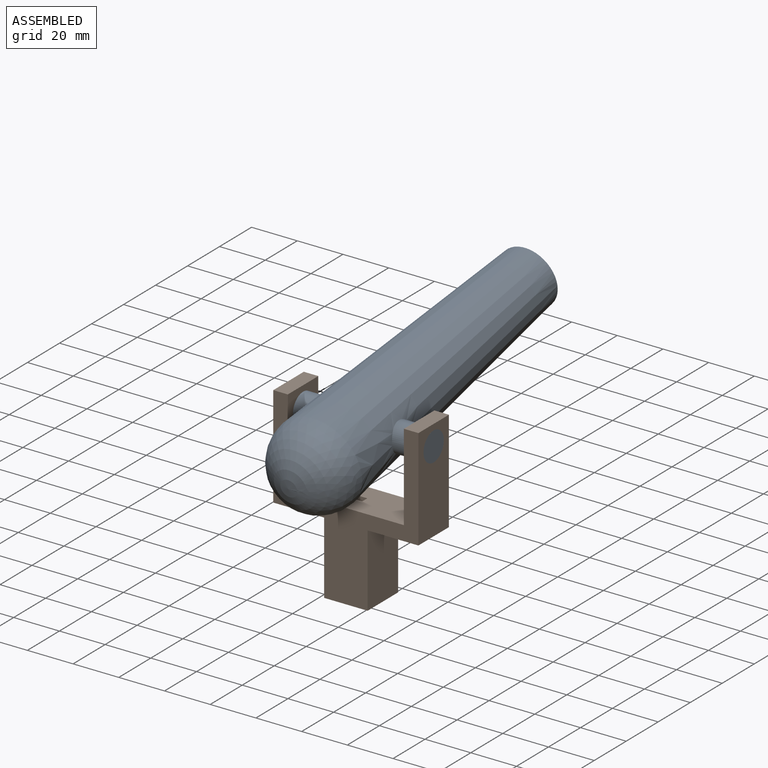
[diagram: assembled view]
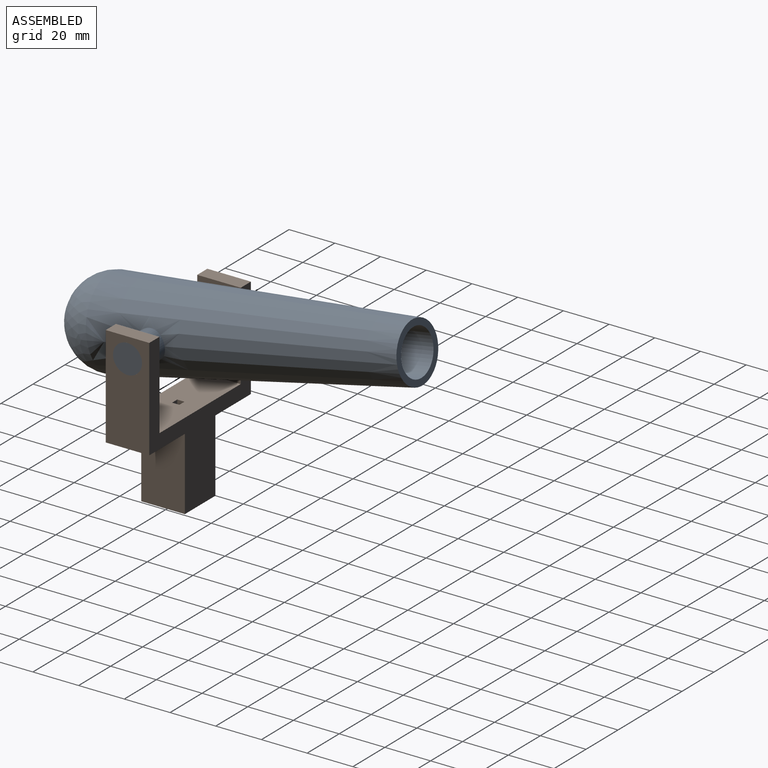
[diagram: assembled view, second angle]
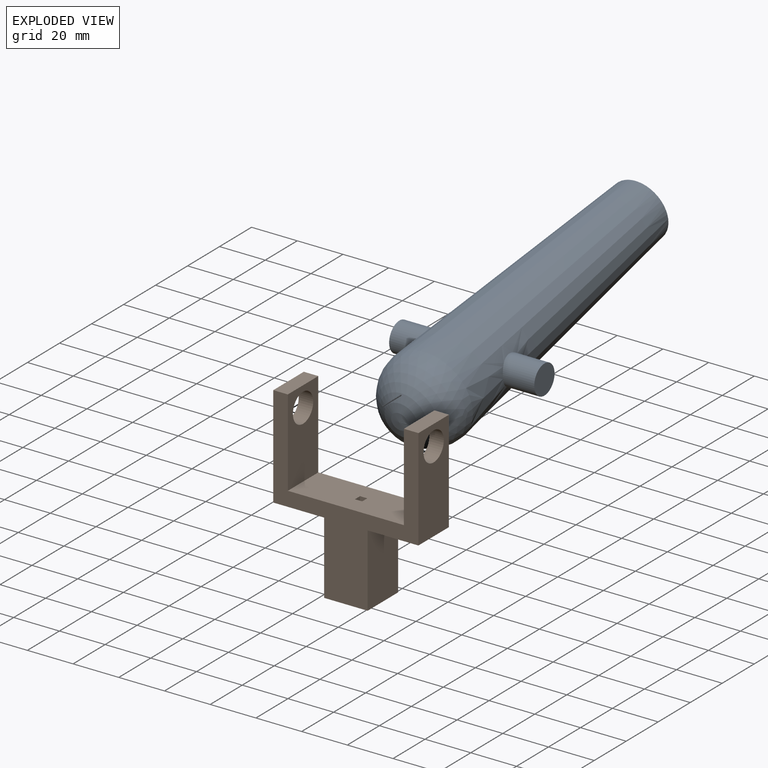
[diagram: exploded view]
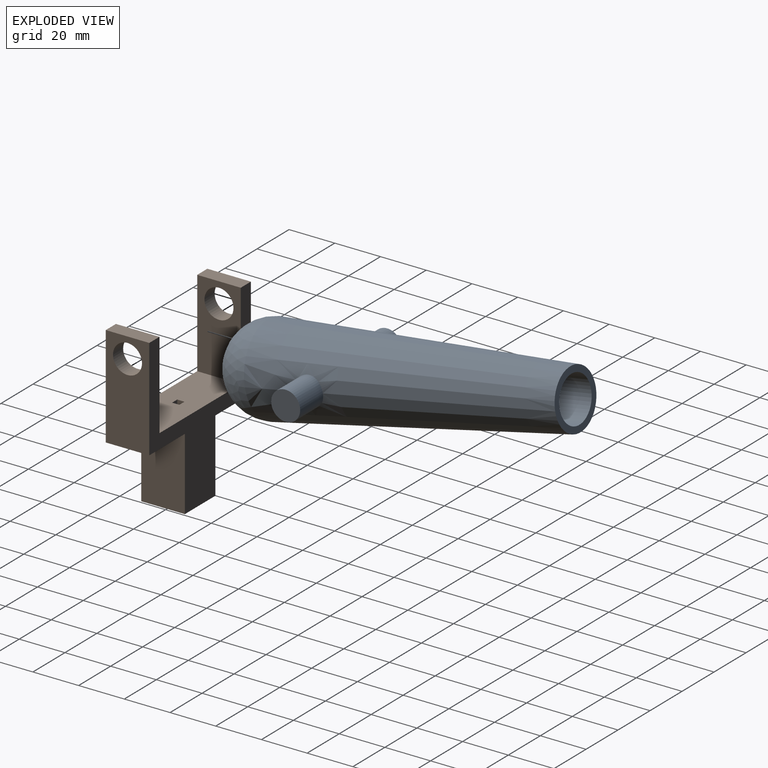
[diagram: exploded view, second angle]
ASSEMBLY  parts=2 mates=2
PART A: 9 faces, bbox 152.4x63.5x38.1 mm
  f0: sphere r=19.05mm, area 2280.2mm2, adj f1
  f1: cone r=19.05mm half-angle=2.7deg, axis (1,0,0), area 13058.3mm2, adj f0,f2,f6,f7
  f2: plane 25.4x25.4mm, normal (-1,0,0), area 202.8mm2, adj f1,f3
  f3: cylinder r=9.84mm len=91.44mm, axis (-1,0,0), area 5650.7mm2, adj f2,f4
  f4: plane 19.67x19.67mm, normal (-1,0,0), area 303.9mm2, adj f3
  f5: plane 12.7x12.7mm, normal (0,1,0), area 126.7mm2, adj f6
  f6: cylinder r=6.35mm len=15.19mm, axis (0,-1,0), area 581.5mm2, adj f1,f5
  f7: cylinder r=6.35mm len=15.19mm, axis (0,-1,0), area 581.5mm2, adj f1,f8
  f8: plane 12.7x12.7mm, normal (0,-1,0), area 126.7mm2, adj f7
PART B: 20 faces, bbox 63.5x19.1x76.2 mm
  f0: plane 31.75x19.05mm, normal (-1,0,0), area 604.8mm2, adj f4,f6,f9,f12
  f1: plane 38.1x3.18mm, normal (-1,0,0), area 121mm2, adj f2,f7,f8,f9
  f2: plane 38.1x3.18mm, normal (0,1,0), area 121mm2, adj f1,f3,f8,f9
  f3: plane 38.1x3.18mm, normal (1,0,0), area 121mm2, adj f2,f7,f8,f9
  f4: plane 76.2x63.5mm, normal (0,-1,0), area 1491.9mm2, adj f0,f5,f8,f9,f10,f11,f12,f13
  f5: plane 31.75x19.05mm, normal (1,0,0), area 604.8mm2, adj f4,f6,f9,f10
  f6: plane 76.2x63.5mm, normal (0,1,0), area 1491.9mm2, adj f0,f5,f8,f9,f10,f11,f12,f13
  f7: plane 38.1x3.18mm, normal (0,-1,0), area 121mm2, adj f1,f3,f8,f9
  f8: plane 50.8x19.05mm, normal (0,0,1), area 957.7mm2, adj f1,f2,f3,f4,f6,f7,f14,f16
  f9: plane 19.05x19.05mm, normal (0,0,-1), area 352.8mm2, adj f0,f1,f2,f3,f4,f5,f6,f7
  f10: plane 22.23x19.05mm, normal (0,0,-1), area 423.4mm2, adj f4,f5,f6,f11
  f11: plane 44.45x19.05mm, normal (1,0,0), area 720.1mm2, adj f4,f6,f10,f17,f19
  f12: plane 22.23x19.05mm, normal (0,0,-1), area 423.4mm2, adj f0,f4,f6,f13
  f13: plane 44.45x19.05mm, normal (-1,0,0), area 720.1mm2, adj f4,f6,f12,f15,f18
  f14: plane 38.1x19.05mm, normal (1,0,0), area 599.1mm2, adj f4,f6,f8,f15,f18
  f15: plane 19.05x6.35mm, normal (0,0,1), area 121mm2, adj f4,f6,f13,f14
  f16: plane 38.1x19.05mm, normal (-1,0,0), area 599.1mm2, adj f4,f6,f8,f17,f19
  f17: plane 19.05x6.35mm, normal (0,0,1), area 121mm2, adj f4,f6,f11,f16
  f18: cylinder r=6.35mm len=12.7mm, axis (1,0,0), area 253.4mm2, adj f13,f14
  f19: cylinder r=6.35mm len=12.7mm, axis (-1,0,0), area 253.4mm2, adj f11,f16
PLACE A rot(axis=(0.09,0.09,-0.99),90.4deg) t=(-25.31,79.3,64.31)mm
PLACE B rot(axis=(1,0,0),0deg) t=(-25.31,41.89,-9.6)mm
MATE cylindrical A.f6 <-> B.f18  axis (-1,0,0) through (-57.06,41.89,57.71)mm
MATE planar B.f13 <-> A.f6  axis (-1,0,0) through (-57.06,32.37,44.37)mm
